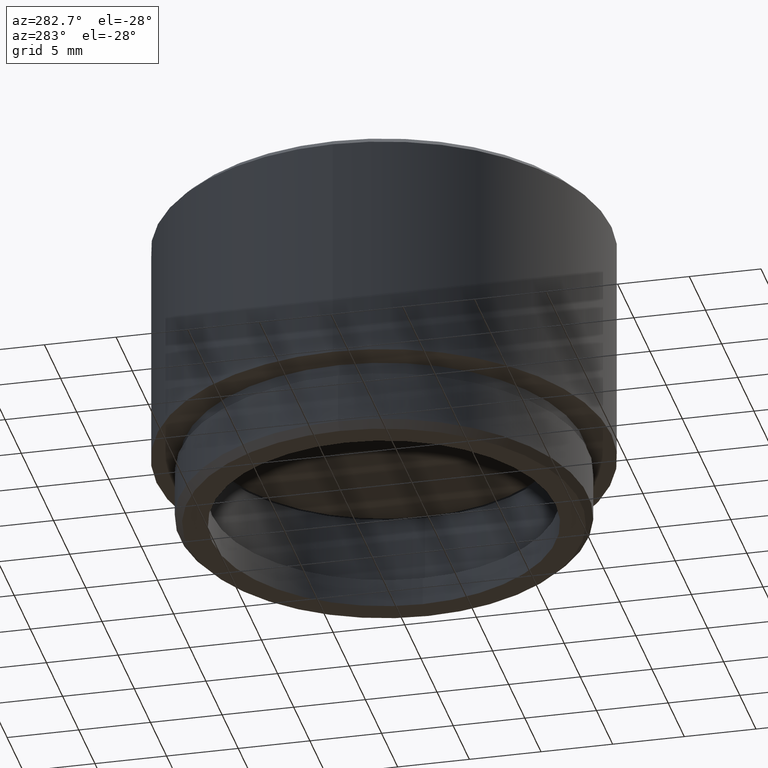
[diagram: clean part render]
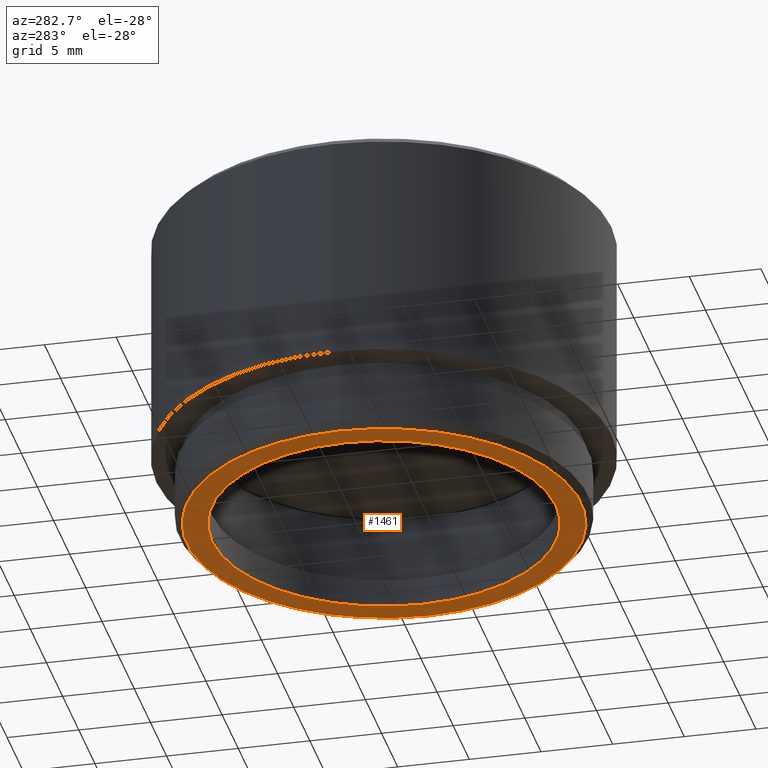
[diagram: same view with one face highlighted and labeled with its STEP entity id]
A machine part, auxiliary view. The second image highlights one B-rep face of the part: STEP entity #1461.
In plain terms, the highlighted planar face has unit normal (0, 0, 1).
Its self-contained STEP definition (entity closure, byte-faithful):
#6 = DIRECTION ( 'NONE',  ( 0.000000000000000000, 0.000000000000000000, 1.000000000000000000 ) ) ;
#12 = DIRECTION ( 'NONE',  ( 1.000000000000000000, 0.000000000000000000, 0.000000000000000000 ) ) ;
#35 = PLANE ( 'NONE',  #1391 ) ;
#86 = ORIENTED_EDGE ( 'NONE', *, *, #1075, .T. ) ;
#133 = CIRCLE ( 'NONE', #860, 13.74999999999999112 ) ;
#220 = ORIENTED_EDGE ( 'NONE', *, *, #708, .T. ) ;
#276 = VERTEX_POINT ( 'NONE', #997 ) ;
#286 = DIRECTION ( 'NONE',  ( 0.000000000000000000, 0.000000000000000000, 1.000000000000000000 ) ) ;
#298 = CARTESIAN_POINT ( 'NONE',  ( -12.00000000000000178, 0.000000000000000000, 0.000000000000000000 ) ) ;
#316 = ORIENTED_EDGE ( 'NONE', *, *, #999, .T. ) ;
#317 = EDGE_CURVE ( 'NONE', #276, #1595, #133, .T. ) ;
#454 = VERTEX_POINT ( 'NONE', #890 ) ;
#537 = CIRCLE ( 'NONE', #1492, 13.74999999999999112 ) ;
#549 = EDGE_LOOP ( 'NONE', ( #316, #220 ) ) ;
#637 = CIRCLE ( 'NONE', #1423, 12.00000000000000178 ) ;
#703 = CARTESIAN_POINT ( 'NONE',  ( -13.74999999999999112, 1.714505518806294046E-15, 0.000000000000000000 ) ) ;
#708 = EDGE_CURVE ( 'NONE', #454, #1137, #637, .T. ) ;
#754 = ORIENTED_EDGE ( 'NONE', *, *, #317, .T. ) ;
#788 = DIRECTION ( 'NONE',  ( 0.000000000000000000, 0.000000000000000000, 1.000000000000000000 ) ) ;
#807 = DIRECTION ( 'NONE',  ( 1.000000000000000000, 0.000000000000000000, 0.000000000000000000 ) ) ;
#809 = CARTESIAN_POINT ( 'NONE',  ( 0.000000000000000000, 0.000000000000000000, 0.000000000000000000 ) ) ;
#817 = FACE_BOUND ( 'NONE', #549, .T. ) ;
#860 = AXIS2_PLACEMENT_3D ( 'NONE', #1654, #874, #1254 ) ;
#874 = DIRECTION ( 'NONE',  ( -0.000000000000000000, -0.000000000000000000, -1.000000000000000000 ) ) ;
#890 = CARTESIAN_POINT ( 'NONE',  ( 12.00000000000000178, 1.469576158976824144E-15, 0.000000000000000000 ) ) ;
#919 = CARTESIAN_POINT ( 'NONE',  ( 0.000000000000000000, 0.000000000000000000, 0.000000000000000000 ) ) ;
#997 = CARTESIAN_POINT ( 'NONE',  ( 13.74999999999999112, 0.000000000000000000, 0.000000000000000000 ) ) ;
#999 = EDGE_CURVE ( 'NONE', #1137, #454, #1027, .T. ) ;
#1027 = CIRCLE ( 'NONE', #1657, 12.00000000000000178 ) ;
#1051 = DIRECTION ( 'NONE',  ( -0.000000000000000000, -0.000000000000000000, -1.000000000000000000 ) ) ;
#1059 = CARTESIAN_POINT ( 'NONE',  ( 0.000000000000000000, 0.000000000000000000, 0.000000000000000000 ) ) ;
#1075 = EDGE_CURVE ( 'NONE', #1595, #276, #537, .T. ) ;
#1137 = VERTEX_POINT ( 'NONE', #298 ) ;
#1254 = DIRECTION ( 'NONE',  ( 1.000000000000000000, 0.000000000000000000, 0.000000000000000000 ) ) ;
#1296 = EDGE_LOOP ( 'NONE', ( #754, #86 ) ) ;
#1325 = DIRECTION ( 'NONE',  ( 1.000000000000000000, 0.000000000000000000, -0.000000000000000000 ) ) ;
#1328 = CARTESIAN_POINT ( 'NONE',  ( 0.000000000000000000, 0.000000000000000000, 0.000000000000000000 ) ) ;
#1391 = AXIS2_PLACEMENT_3D ( 'NONE', #809, #6, #1325 ) ;
#1423 = AXIS2_PLACEMENT_3D ( 'NONE', #1059, #286, #807 ) ;
#1461 = ADVANCED_FACE ( 'NONE', ( #1601, #817 ), #35, .F. ) ;
#1492 = AXIS2_PLACEMENT_3D ( 'NONE', #1328, #1051, #1703 ) ;
#1595 = VERTEX_POINT ( 'NONE', #703 ) ;
#1601 = FACE_OUTER_BOUND ( 'NONE', #1296, .T. ) ;
#1654 = CARTESIAN_POINT ( 'NONE',  ( 0.000000000000000000, 0.000000000000000000, 0.000000000000000000 ) ) ;
#1657 = AXIS2_PLACEMENT_3D ( 'NONE', #919, #788, #12 ) ;
#1703 = DIRECTION ( 'NONE',  ( 1.000000000000000000, 0.000000000000000000, 0.000000000000000000 ) ) ;